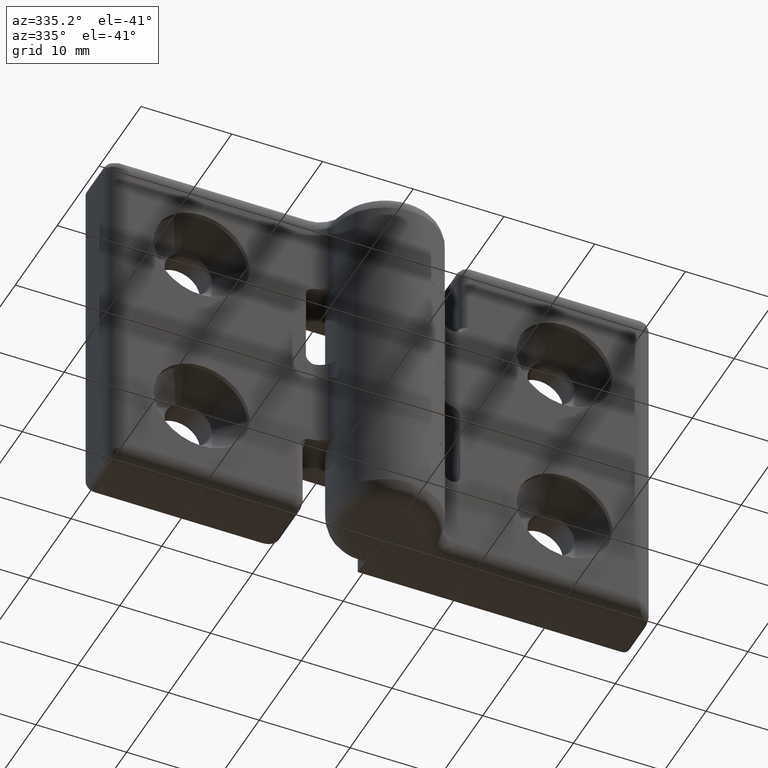
[diagram: clean part render]
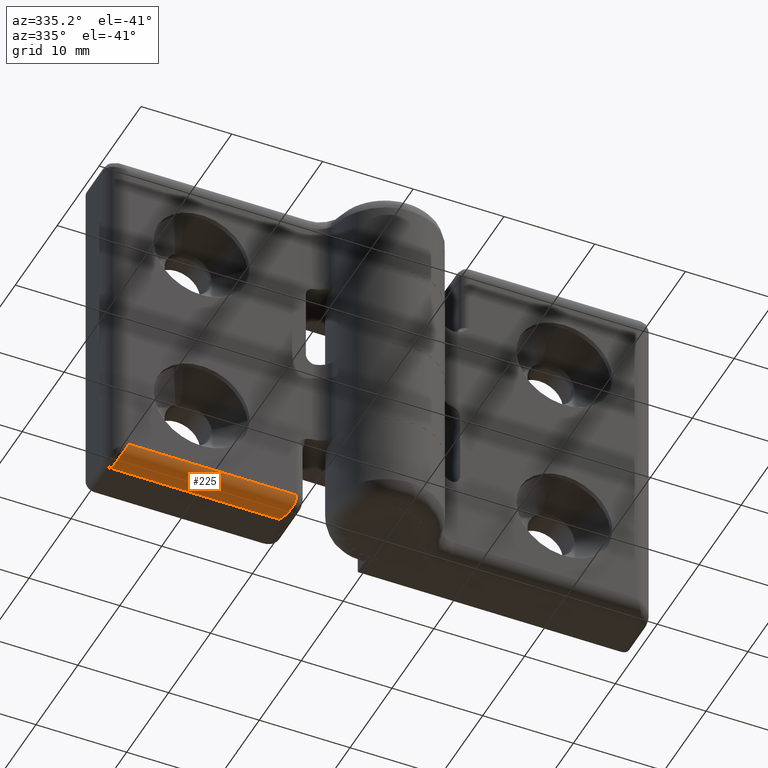
[diagram: same view with one face highlighted and labeled with its STEP entity id]
A machine part, auxiliary view. The second image highlights one B-rep face of the part: STEP entity #225.
In plain terms, the highlighted cylindrical surface (edge-blend (fillet) strip) has radius 2 mm, axis along (1, -0, 0).
Its self-contained STEP definition (entity closure, byte-faithful):
#225=ADVANCED_FACE('',(#851),#850,.T.);
#850=CYLINDRICAL_SURFACE('',#1721,2.00000000000E+00);
#851=FACE_OUTER_BOUND('',#1722,.T.);
#1718=CARTESIAN_POINT('',(9.00031250000E+00,2.50000000000E+00,3.80000000000E+01));
#1719=DIRECTION('',(-1.00000000000E+00,-5.78434472967E-16,-1.76181892144E-15));
#1720=DIRECTION('',(1.77635683940E-15,-2.61769483079E-02,-9.99657324976E-01));
#1721=AXIS2_PLACEMENT_3D('',#1718,#1719,#1720);
#1722=EDGE_LOOP('',(#2293,#2294,#2295,#2296));
#2293=ORIENTED_EDGE('',*,*,#2733,.T.);
#2294=ORIENTED_EDGE('',*,*,#2734,.F.);
#2295=ORIENTED_EDGE('',*,*,#2732,.F.);
#2296=ORIENTED_EDGE('',*,*,#2735,.F.);
#2732=EDGE_CURVE('',#3928,#3909,#3935,.T.);
#2733=EDGE_CURVE('',#3941,#3942,#3943,.T.);
#2734=EDGE_CURVE('',#3909,#3942,#3949,.T.);
#2735=EDGE_CURVE('',#3941,#3928,#3955,.T.);
#3909=VERTEX_POINT('',#5258);
#3928=VERTEX_POINT('',#5270);
#3935=(BOUNDED_CURVE() B_SPLINE_CURVE(2,(#5275,#5276,#5277),.UNSPECIFIED.,.F.,.F.) B_SPLINE_CURVE_WITH_KNOTS((3,3),(0.00000000000E+00,1.00000000000E+00),.UNSPECIFIED.) CURVE() GEOMETRIC_REPRESENTATION_ITEM() RATIONAL_B_SPLINE_CURVE((1.00000000000E+00,7.07106781187E-01,1.00000000000E+00)) REPRESENTATION_ITEM('') );
#3941=VERTEX_POINT('',#5278);
#3942=VERTEX_POINT('',#5279);
#3943=(BOUNDED_CURVE() B_SPLINE_CURVE(2,(#5280,#5281,#5282,#5283,#5284),.UNSPECIFIED.,.F.,.F.) B_SPLINE_CURVE_WITH_KNOTS((3,2,3),(0.00000000000E+00,5.00000000000E-01,1.00000000000E+00),.UNSPECIFIED.) CURVE() GEOMETRIC_REPRESENTATION_ITEM() RATIONAL_B_SPLINE_CURVE((1.00000000000E+00,9.23879532511E-01,1.00000000000E+00,9.23879532511E-01,1.00000000000E+00)) REPRESENTATION_ITEM('') );
#3949=LINE('',#5285,#5286);
#3955=LINE('',#5288,#5289);
#5258=CARTESIAN_POINT('',(2.80000000000E+01,5.00000000000E-01,3.80000000000E+01));
#5270=CARTESIAN_POINT('',(2.90000000000E+01,2.50000000000E+00,4.00000000000E+01));
#5275=CARTESIAN_POINT('',(2.90000000000E+01,2.50000000000E+00,4.00000000000E+01));
#5276=CARTESIAN_POINT('',(2.90000000000E+01,5.00000000000E-01,4.00000000000E+01));
#5277=CARTESIAN_POINT('',(2.80000000000E+01,5.00000000000E-01,3.80000000000E+01));
#5278=CARTESIAN_POINT('',(1.05000000000E+01,2.50000000000E+00,4.00000000000E+01));
#5279=CARTESIAN_POINT('',(9.50000000000E+00,5.00000000000E-01,3.80000000000E+01));
#5280=CARTESIAN_POINT('',(1.05000000000E+01,2.50000000000E+00,4.00000000000E+01));
#5281=CARTESIAN_POINT('',(1.00857864376E+01,1.67157287525E+00,4.00000000000E+01));
#5282=CARTESIAN_POINT('',(9.79289321881E+00,1.08578643763E+00,3.94142135624E+01));
#5283=CARTESIAN_POINT('',(9.50000000000E+00,5.00000000000E-01,3.88284271247E+01));
#5284=CARTESIAN_POINT('',(9.50000000000E+00,5.00000000000E-01,3.80000000000E+01));
#5285=CARTESIAN_POINT('',(2.80000000000E+01,5.00000000000E-01,3.80000000000E+01));
#5286=VECTOR('',#5287,1.85000000000E+01);
#5287=DIRECTION('',(-1.00000000000E+00,0.00000000000E+00,0.00000000000E+00));
#5288=CARTESIAN_POINT('',(1.05000000000E+01,2.50000000000E+00,4.00000000000E+01));
#5289=VECTOR('',#5290,1.85000000000E+01);
#5290=DIRECTION('',(1.00000000000E+00,0.00000000000E+00,0.00000000000E+00));